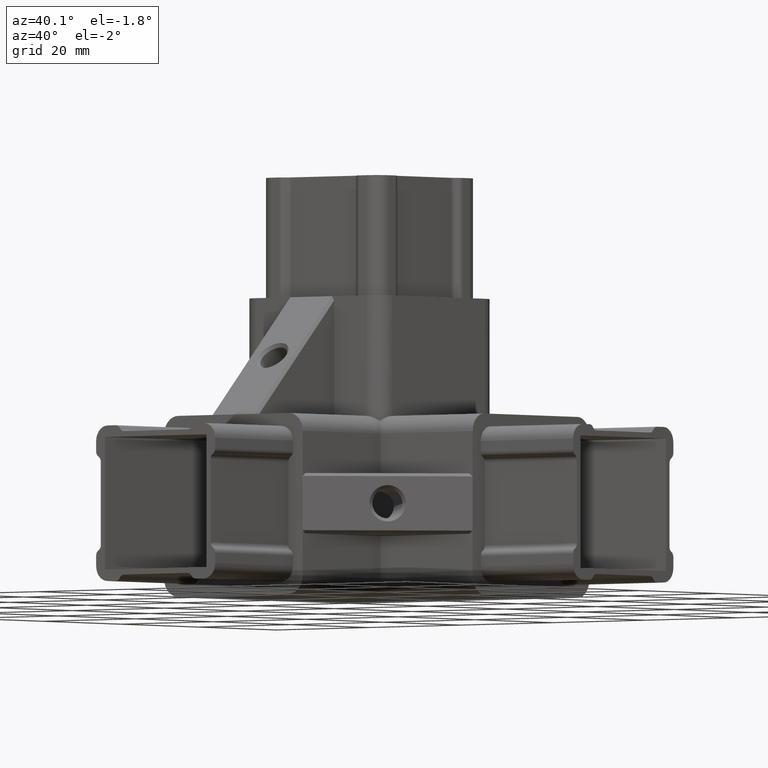
[diagram: clean part render]
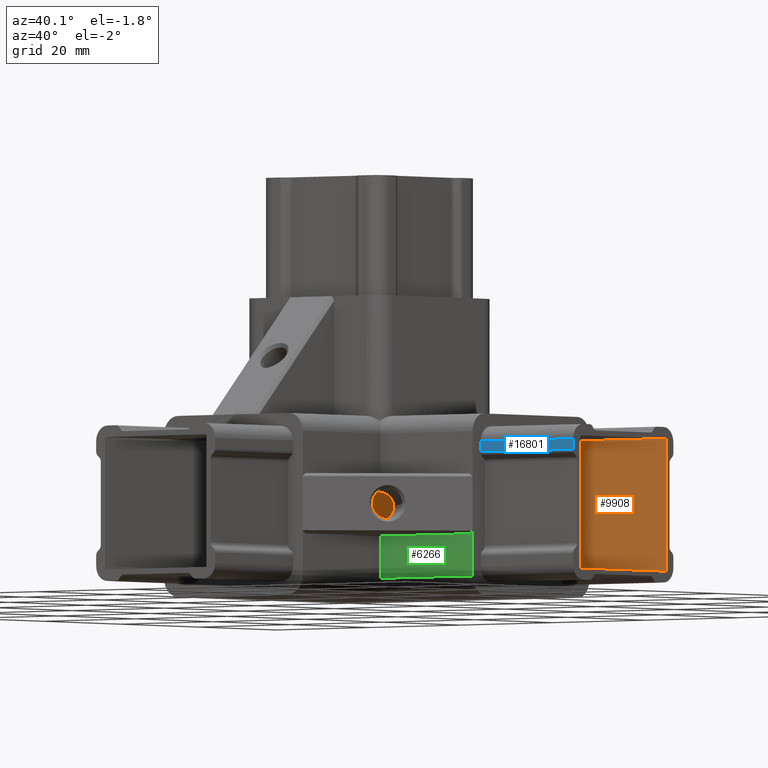
[diagram: same view with three faces highlighted in distinct colors, each labeled with its STEP entity id]
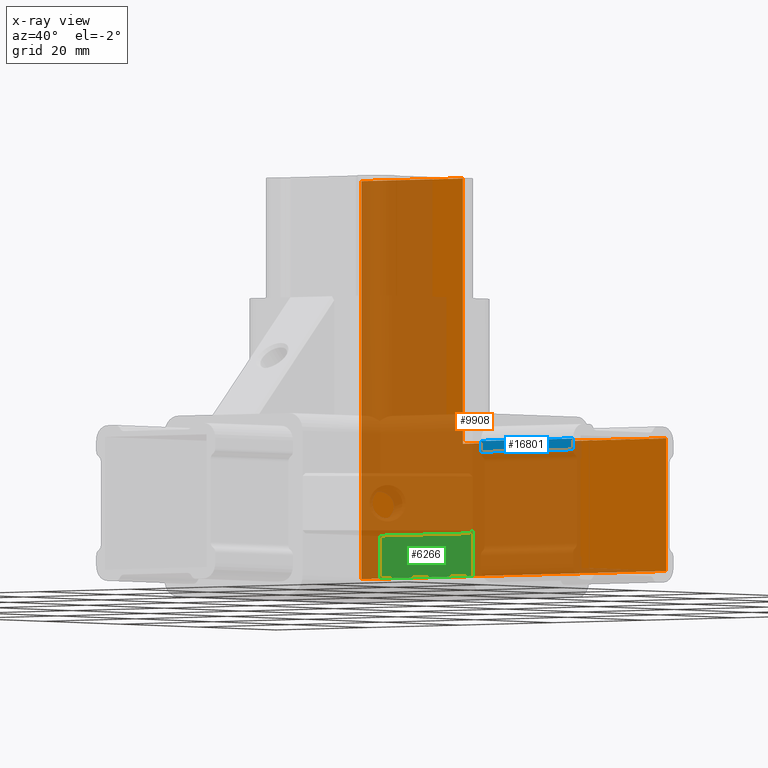
[diagram: x-ray of the same camera — body ghosted, the three highlighted faces saturated]
A machine part, auxiliary view with three faces highlighted in distinct colors.
The next image is the same camera in x-ray (body ghosted, the three faces saturated) — at least one of them is partly hidden behind the body in this view.
Their STEP definitions:

[orange] entity #9908 — the highlighted planar face has unit normal (0, -1, -0).
#39 = DIRECTION ( 'NONE',  ( 0.0000000000000000000, -2.775557561562891400E-016, 1.000000000000000000 ) ) ;
#442 = ORIENTED_EDGE ( 'NONE', *, *, #17236, .T. ) ;
#535 = ORIENTED_EDGE ( 'NONE', *, *, #15685, .T. ) ;
#801 = EDGE_CURVE ( 'NONE', #8239, #4914, #11835, .T. ) ;
#1027 = ORIENTED_EDGE ( 'NONE', *, *, #13850, .F. ) ;
#1070 = CARTESIAN_POINT ( 'NONE',  ( 70.00000000000000000, 46.00000000000000000, 4.333333333333373000 ) ) ;
#1164 = DIRECTION ( 'NONE',  ( 0.0000000000000000000, -1.000000000000000000, -2.775557561562891400E-016 ) ) ;
#1180 = LINE ( 'NONE', #14708, #18839 ) ;
#1187 = DIRECTION ( 'NONE',  ( -0.0000000000000000000, -0.0000000000000000000, 1.000000000000000000 ) ) ;
#1703 = CARTESIAN_POINT ( 'NONE',  ( 4.000000000000000000, 45.99999999999998600, 48.33333333333336400 ) ) ;
#2093 = VERTEX_POINT ( 'NONE', #5241 ) ;
#3662 = DIRECTION ( 'NONE',  ( 0.0000000000000000000, 2.775557561562891400E-016, -1.000000000000000000 ) ) ;
#4136 = EDGE_CURVE ( 'NONE', #9365, #2093, #19023, .T. ) ;
#4168 = VECTOR ( 'NONE', #15217, 1000.000000000000000 ) ;
#4907 = LINE ( 'NONE', #1070, #7971 ) ;
#4914 = VERTEX_POINT ( 'NONE', #1703 ) ;
#5241 = CARTESIAN_POINT ( 'NONE',  ( 70.00000000000000000, 46.00000000000000000, 4.333333333333373000 ) ) ;
#5386 = DIRECTION ( 'NONE',  ( -1.000000000000000000, -0.0000000000000000000, -0.0000000000000000000 ) ) ;
#5653 = DIRECTION ( 'NONE',  ( -1.000000000000000000, 0.0000000000000000000, 0.0000000000000000000 ) ) ;
#5672 = FACE_OUTER_BOUND ( 'NONE', #11840, .T. ) ;
#7112 = CARTESIAN_POINT ( 'NONE',  ( 4.000000000000000000, 45.99999999999998600, 48.33333333333336400 ) ) ;
#7971 = VECTOR ( 'NONE', #1187, 1000.000000000000000 ) ;
#8096 = CARTESIAN_POINT ( 'NONE',  ( 26.00000000000000000, 45.99999999999998600, 48.33333333333336400 ) ) ;
#8239 = VERTEX_POINT ( 'NONE', #12329 ) ;
#8303 = DIRECTION ( 'NONE',  ( 0.0000000000000000000, -2.775557561562891400E-016, 1.000000000000000000 ) ) ;
#8594 = CARTESIAN_POINT ( 'NONE',  ( 70.00000000000000000, 46.00000000000000000, -17.66666666666662500 ) ) ;
#8638 = PLANE ( 'NONE',  #12536 ) ;
#9225 = VECTOR ( 'NONE', #8303, 1000.000000000000000 ) ;
#9233 = CARTESIAN_POINT ( 'NONE',  ( -0.001000000000001000100, 46.00000000000000000, 4.333333333333373000 ) ) ;
#9365 = VERTEX_POINT ( 'NONE', #15409 ) ;
#9908 = ADVANCED_FACE ( 'NONE', ( #5672 ), #8638, .T. ) ;
#10252 = VECTOR ( 'NONE', #39, 1000.000000000000000 ) ;
#11247 = VECTOR ( 'NONE', #5386, 1000.000000000000000 ) ;
#11802 = VERTEX_POINT ( 'NONE', #8594 ) ;
#11835 = LINE ( 'NONE', #14345, #9225 ) ;
#11840 = EDGE_LOOP ( 'NONE', ( #16466, #1027, #17284, #13072, #442, #535 ) ) ;
#12329 = CARTESIAN_POINT ( 'NONE',  ( 4.000000000000000000, 46.00000000000000000, -17.66666666666662500 ) ) ;
#12536 = AXIS2_PLACEMENT_3D ( 'NONE', #19133, #1164, #3662 ) ;
#13072 = ORIENTED_EDGE ( 'NONE', *, *, #4136, .F. ) ;
#13784 = VERTEX_POINT ( 'NONE', #8096 ) ;
#13850 = EDGE_CURVE ( 'NONE', #11802, #8239, #1180, .T. ) ;
#14345 = CARTESIAN_POINT ( 'NONE',  ( 4.000000000000000000, 46.00000000000000000, -21.66666666666662500 ) ) ;
#14708 = CARTESIAN_POINT ( 'NONE',  ( 30.00000000000000000, 46.00000000000000000, -17.66666666666662500 ) ) ;
#14836 = CARTESIAN_POINT ( 'NONE',  ( 26.00000000000000000, 46.00000000000000000, -21.66666666666662500 ) ) ;
#14977 = EDGE_CURVE ( 'NONE', #11802, #2093, #4907, .T. ) ;
#15217 = DIRECTION ( 'NONE',  ( 1.000000000000000000, -0.0000000000000000000, -0.0000000000000000000 ) ) ;
#15409 = CARTESIAN_POINT ( 'NONE',  ( 26.00000000000000000, 45.99999999999999300, 4.333333333333373000 ) ) ;
#15685 = EDGE_CURVE ( 'NONE', #13784, #4914, #18116, .T. ) ;
#16466 = ORIENTED_EDGE ( 'NONE', *, *, #801, .F. ) ;
#17236 = EDGE_CURVE ( 'NONE', #9365, #13784, #19248, .T. ) ;
#17284 = ORIENTED_EDGE ( 'NONE', *, *, #14977, .T. ) ;
#18116 = LINE ( 'NONE', #7112, #11247 ) ;
#18839 = VECTOR ( 'NONE', #5653, 1000.000000000000000 ) ;
#19023 = LINE ( 'NONE', #9233, #4168 ) ;
#19133 = CARTESIAN_POINT ( 'NONE',  ( 30.00000000000000000, 46.00000000000000000, -21.66666666666662500 ) ) ;
#19248 = LINE ( 'NONE', #14836, #10252 ) ;

[blue] entity #16801 — the highlighted planar face has unit normal (-0, 1, 0).
#345 = EDGE_CURVE ( 'NONE', #1705, #14607, #12094, .T. ) ;
#1032 = DIRECTION ( 'NONE',  ( -0.0000000000000000000, 1.000000000000000000, 0.0000000000000000000 ) ) ;
#1179 = CARTESIAN_POINT ( 'NONE',  ( 70.00000000000000000, 22.10000000000000100, 1.965384140902251400 ) ) ;
#1705 = VERTEX_POINT ( 'NONE', #11238 ) ;
#2519 = CARTESIAN_POINT ( 'NONE',  ( 70.00000000000000000, 22.10000000000000100, 6.233333333333370700 ) ) ;
#2745 = EDGE_CURVE ( 'NONE', #10647, #8771, #15211, .T. ) ;
#3090 = CARTESIAN_POINT ( 'NONE',  ( 70.00000000000000000, 22.10000000000000100, 3.733333333333371600 ) ) ;
#3509 = ORIENTED_EDGE ( 'NONE', *, *, #13176, .T. ) ;
#4227 = EDGE_LOOP ( 'NONE', ( #11270, #3509, #11925, #5066 ) ) ;
#4416 = CARTESIAN_POINT ( 'NONE',  ( 70.00000000000000000, 22.10000000000000100, 6.233333333333370700 ) ) ;
#4941 = CARTESIAN_POINT ( 'NONE',  ( 70.00000000000000000, 22.10000000000000100, 1.965384140902251400 ) ) ;
#5066 = ORIENTED_EDGE ( 'NONE', *, *, #19091, .T. ) ;
#5926 = CARTESIAN_POINT ( 'NONE',  ( 70.00000000000000000, 22.10000000000000100, 3.733333333333371600 ) ) ;
#6072 = DIRECTION ( 'NONE',  ( 0.0000000000000000000, 0.0000000000000000000, -1.000000000000000000 ) ) ;
#7165 = DIRECTION ( 'NONE',  ( 1.000000000000000000, -0.0000000000000000000, -0.0000000000000000000 ) ) ;
#7418 = VECTOR ( 'NONE', #7165, 1000.000000000000000 ) ;
#8177 = CARTESIAN_POINT ( 'NONE',  ( 50.00000000000000000, 22.10000000000000100, 1.965384140902251400 ) ) ;
#8202 = LINE ( 'NONE', #3090, #12241 ) ;
#8771 = VERTEX_POINT ( 'NONE', #4941 ) ;
#9853 = DIRECTION ( 'NONE',  ( 0.0000000000000000000, 0.0000000000000000000, -1.000000000000000000 ) ) ;
#10647 = VERTEX_POINT ( 'NONE', #5926 ) ;
#11238 = CARTESIAN_POINT ( 'NONE',  ( 50.00000000000000000, 22.10000000000000100, 3.733333333333371600 ) ) ;
#11270 = ORIENTED_EDGE ( 'NONE', *, *, #2745, .F. ) ;
#11468 = DIRECTION ( 'NONE',  ( 0.0000000000000000000, -0.0000000000000000000, 1.000000000000000000 ) ) ;
#11846 = DIRECTION ( 'NONE',  ( -1.000000000000000000, 0.0000000000000000000, 0.0000000000000000000 ) ) ;
#11925 = ORIENTED_EDGE ( 'NONE', *, *, #345, .T. ) ;
#12094 = LINE ( 'NONE', #19112, #17503 ) ;
#12241 = VECTOR ( 'NONE', #11846, 1000.000000000000000 ) ;
#12439 = FACE_OUTER_BOUND ( 'NONE', #4227, .T. ) ;
#13015 = PLANE ( 'NONE',  #17371 ) ;
#13176 = EDGE_CURVE ( 'NONE', #10647, #1705, #8202, .T. ) ;
#14607 = VERTEX_POINT ( 'NONE', #8177 ) ;
#15211 = LINE ( 'NONE', #4416, #18029 ) ;
#16801 = ADVANCED_FACE ( 'NONE', ( #12439 ), #13015, .F. ) ;
#17371 = AXIS2_PLACEMENT_3D ( 'NONE', #2519, #1032, #11468 ) ;
#17503 = VECTOR ( 'NONE', #9853, 1000.000000000000000 ) ;
#17797 = LINE ( 'NONE', #1179, #7418 ) ;
#18029 = VECTOR ( 'NONE', #6072, 1000.000000000000000 ) ;
#19091 = EDGE_CURVE ( 'NONE', #14607, #8771, #17797, .T. ) ;
#19112 = CARTESIAN_POINT ( 'NONE',  ( 50.00000000000000000, 22.10000000000000100, 6.233333333333370700 ) ) ;

[green] entity #6266 — the highlighted planar face has unit normal (-0, 1, 0).
#210 = LINE ( 'NONE', #14579, #14318 ) ;
#244 = LINE ( 'NONE', #9392, #10283 ) ;
#973 = DIRECTION ( 'NONE',  ( 0.0000000000000000000, 0.0000000000000000000, -1.000000000000000000 ) ) ;
#4407 = ORIENTED_EDGE ( 'NONE', *, *, #16540, .T. ) ;
#4725 = CARTESIAN_POINT ( 'NONE',  ( 29.99999999998635800, 19.99999999999090900, -11.66666666666663200 ) ) ;
#4833 = DIRECTION ( 'NONE',  ( 0.0000000000000000000, -0.0000000000000000000, 1.000000000000000000 ) ) ;
#5939 = LINE ( 'NONE', #8322, #15857 ) ;
#6222 = DIRECTION ( 'NONE',  ( -0.0000000000000000000, 1.000000000000000000, 0.0000000000000000000 ) ) ;
#6266 = ADVANCED_FACE ( 'NONE', ( #18743 ), #18145, .F. ) ;
#6307 = LINE ( 'NONE', #17820, #13871 ) ;
#7232 = ORIENTED_EDGE ( 'NONE', *, *, #8444, .F. ) ;
#7546 = ORIENTED_EDGE ( 'NONE', *, *, #15439, .T. ) ;
#7572 = VECTOR ( 'NONE', #973, 1000.000000000000000 ) ;
#8322 = CARTESIAN_POINT ( 'NONE',  ( -499970.0000000000600, 19.99999999998181000, -11.66666666644979200 ) ) ;
#8444 = EDGE_CURVE ( 'NONE', #13280, #14712, #5939, .T. ) ;
#9330 = DIRECTION ( 'NONE',  ( -0.8164965809841426800, -0.0000000000000000000, -0.5773502691098406600 ) ) ;
#9392 = CARTESIAN_POINT ( 'NONE',  ( 59.19238815478998100, 20.00000000000000400, -4.666666668463149000 ) ) ;
#9427 = AXIS2_PLACEMENT_3D ( 'NONE', #12417, #6222, #4833 ) ;
#9849 = EDGE_CURVE ( 'NONE', #17180, #13583, #14196, .T. ) ;
#9902 = DIRECTION ( 'NONE',  ( 1.000000000000000000, 0.0000000000000000000, -0.0000000000000000000 ) ) ;
#10283 = VECTOR ( 'NONE', #9330, 1000.000000000000000 ) ;
#10956 = EDGE_LOOP ( 'NONE', ( #4407, #11450, #12596, #7546, #7232 ) ) ;
#11450 = ORIENTED_EDGE ( 'NONE', *, *, #17106, .T. ) ;
#12417 = CARTESIAN_POINT ( 'NONE',  ( 50.00000000000000000, 20.00000000000000400, 8.333333333333367700 ) ) ;
#12596 = ORIENTED_EDGE ( 'NONE', *, *, #9849, .F. ) ;
#12687 = VERTEX_POINT ( 'NONE', #13274 ) ;
#12994 = CARTESIAN_POINT ( 'NONE',  ( 50.00000000000000000, 20.00000000000000400, -11.16666666666665900 ) ) ;
#13274 = CARTESIAN_POINT ( 'NONE',  ( 30.00000000000000000, 20.00000000000000400, -18.66666666666662900 ) ) ;
#13280 = VERTEX_POINT ( 'NONE', #4725 ) ;
#13424 = DIRECTION ( 'NONE',  ( 0.0000000000000000000, 0.0000000000000000000, -1.000000000000000000 ) ) ;
#13583 = VERTEX_POINT ( 'NONE', #19374 ) ;
#13871 = VECTOR ( 'NONE', #13424, 1000.000000000000000 ) ;
#14196 = LINE ( 'NONE', #19203, #7572 ) ;
#14318 = VECTOR ( 'NONE', #9902, 1000.000000000000000 ) ;
#14579 = CARTESIAN_POINT ( 'NONE',  ( 50.00000000000000000, 20.00000000000000400, -18.66666666666662900 ) ) ;
#14712 = VERTEX_POINT ( 'NONE', #17670 ) ;
#15439 = EDGE_CURVE ( 'NONE', #17180, #14712, #244, .T. ) ;
#15857 = VECTOR ( 'NONE', #17315, 1000.000000000000000 ) ;
#16540 = EDGE_CURVE ( 'NONE', #13280, #12687, #6307, .T. ) ;
#17106 = EDGE_CURVE ( 'NONE', #12687, #13583, #210, .T. ) ;
#17180 = VERTEX_POINT ( 'NONE', #12994 ) ;
#17315 = DIRECTION ( 'NONE',  ( 1.000000000000000000, 0.0000000000000000000, -4.336808689942015300E-016 ) ) ;
#17670 = CARTESIAN_POINT ( 'NONE',  ( 49.29289321864871500, 19.99999999998181000, -11.66666666666664100 ) ) ;
#17820 = CARTESIAN_POINT ( 'NONE',  ( 30.00000000000000000, 20.00000000000000400, 8.333333333333367700 ) ) ;
#18145 = PLANE ( 'NONE',  #9427 ) ;
#18743 = FACE_OUTER_BOUND ( 'NONE', #10956, .T. ) ;
#19203 = CARTESIAN_POINT ( 'NONE',  ( 50.00000000000000000, 20.00000000000000400, 8.333333333333367700 ) ) ;
#19374 = CARTESIAN_POINT ( 'NONE',  ( 50.00000000000000000, 20.00000000000000400, -18.66666666666662900 ) ) ;